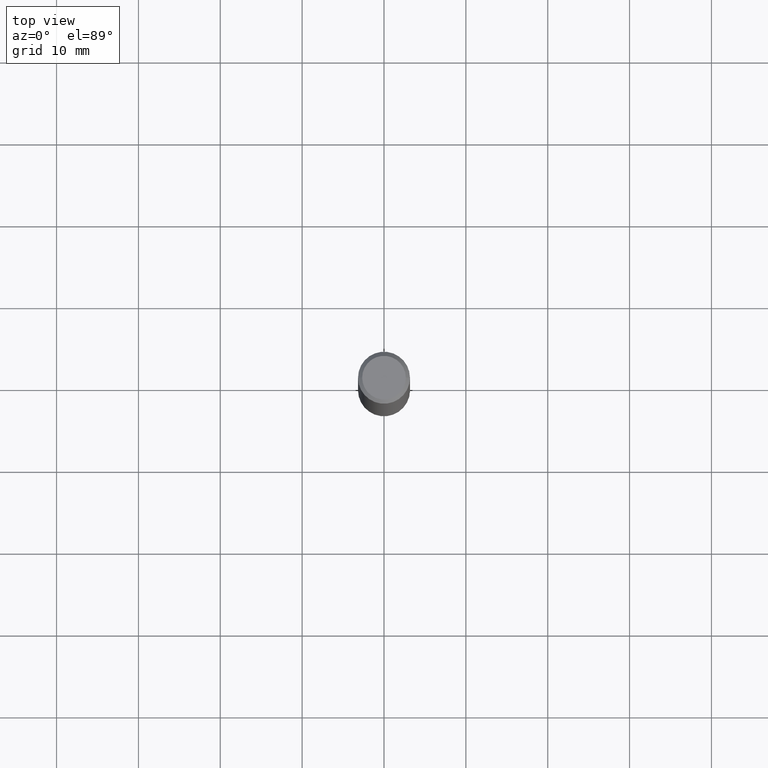
[diagram: clean part render]
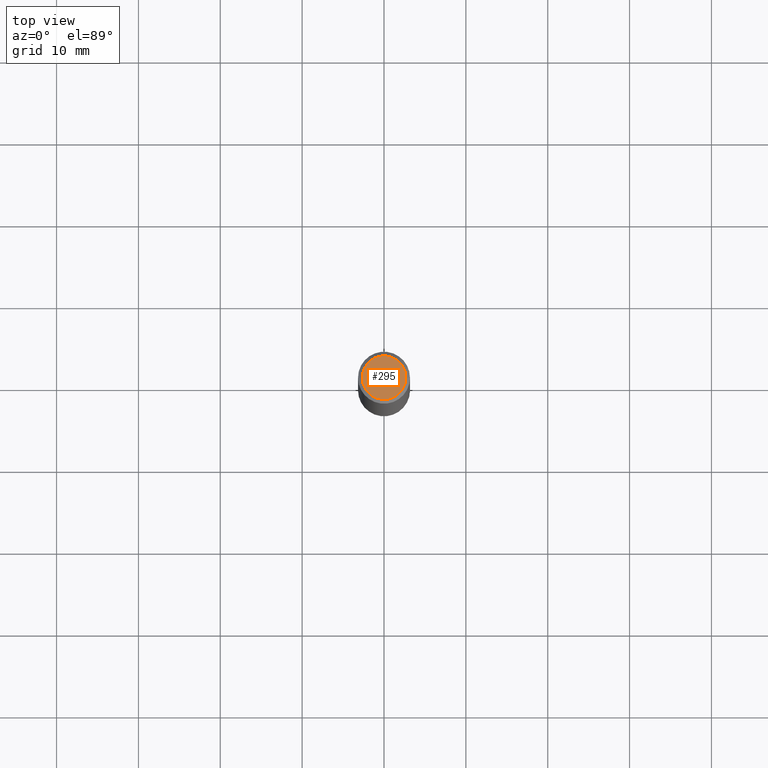
[diagram: same view with one face highlighted and labeled with its STEP entity id]
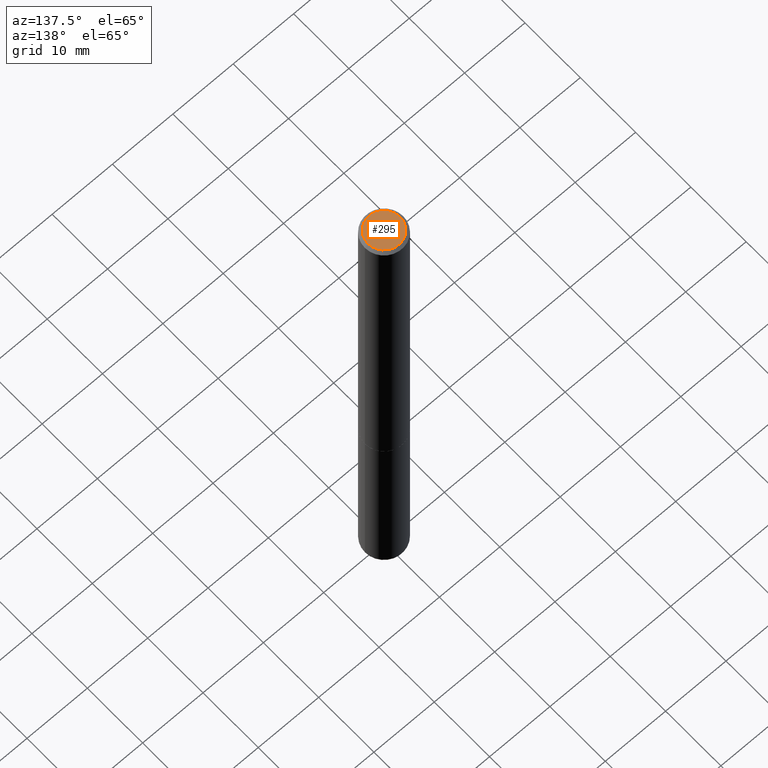
[diagram: same view with one face highlighted and labeled with its STEP entity id]
A machine part, top view. The second image highlights one B-rep face of the part: STEP entity #295.
A second angle (auxiliary view) of the same face is appended — the face is thin or edge-on in the first view.
In plain terms, the highlighted planar face has unit normal (0, -0, -1).
Its self-contained STEP definition (entity closure, byte-faithful):
#9 = DIRECTION ( 'NONE',  ( 2.438088387897960049E-29, -3.491481338843145188E-15, -1.000000000000000000 ) ) ;
#11 = DIRECTION ( 'NONE',  ( -1.000000000000000000, 6.982962677686265922E-15, -4.876176775795935793E-29 ) ) ;
#18 = EDGE_LOOP ( 'NONE', ( #470, #96 ) ) ;
#38 = EDGE_CURVE ( 'NONE', #179, #476, #214, .T. ) ;
#43 = DIRECTION ( 'NONE',  ( -2.445468806185136597E-29, 3.491481338843145583E-15, 1.000000000000000000 ) ) ;
#96 = ORIENTED_EDGE ( 'NONE', *, *, #236, .T. ) ;
#128 = PLANE ( 'NONE',  #237 ) ;
#156 = AXIS2_PLACEMENT_3D ( 'NONE', #453, #43, #375 ) ;
#179 = VERTEX_POINT ( 'NONE', #472 ) ;
#211 = DIRECTION ( 'NONE',  ( 1.000000000000000000, -6.982962677686267499E-15, 4.876206205277427099E-29 ) ) ;
#214 = CIRCLE ( 'NONE', #156, 0.1049999999999992883 ) ;
#236 = EDGE_CURVE ( 'NONE', #476, #179, #474, .T. ) ;
#237 = AXIS2_PLACEMENT_3D ( 'NONE', #431, #9, #11 ) ;
#295 = ADVANCED_FACE ( 'NONE', ( #424 ), #128, .F. ) ;
#358 = DIRECTION ( 'NONE',  ( -2.445468806185136597E-29, 3.491481338843145583E-15, 1.000000000000000000 ) ) ;
#363 = CARTESIAN_POINT ( 'NONE',  ( 4.175405657340879278E-46, -5.961372681521788801E-32, -1.707404996040164512E-17 ) ) ;
#375 = DIRECTION ( 'NONE',  ( 1.000000000000000000, -6.982962677686267499E-15, 4.876206205277427099E-29 ) ) ;
#424 = FACE_OUTER_BOUND ( 'NONE', #18, .T. ) ;
#431 = CARTESIAN_POINT ( 'NONE',  ( 7.332110811570528967E-16, 0.1049999999999992883, -3.751425655587286329E-16 ) ) ;
#453 = CARTESIAN_POINT ( 'NONE',  ( 4.175405657340879278E-46, -5.961372681521788801E-32, -1.707404996040164512E-17 ) ) ;
#465 = AXIS2_PLACEMENT_3D ( 'NONE', #363, #358, #211 ) ;
#470 = ORIENTED_EDGE ( 'NONE', *, *, #38, .T. ) ;
#472 = CARTESIAN_POINT ( 'NONE',  ( -0.1049999999999992883, 7.681258945454842500E-16, -1.707404996040689597E-17 ) ) ;
#474 = CIRCLE ( 'NONE', #465, 0.1049999999999992883 ) ;
#476 = VERTEX_POINT ( 'NONE', #480 ) ;
#480 = CARTESIAN_POINT ( 'NONE',  ( 0.1049999999999992883, -8.238720831321529312E-16, -1.707404996039620013E-17 ) ) ;